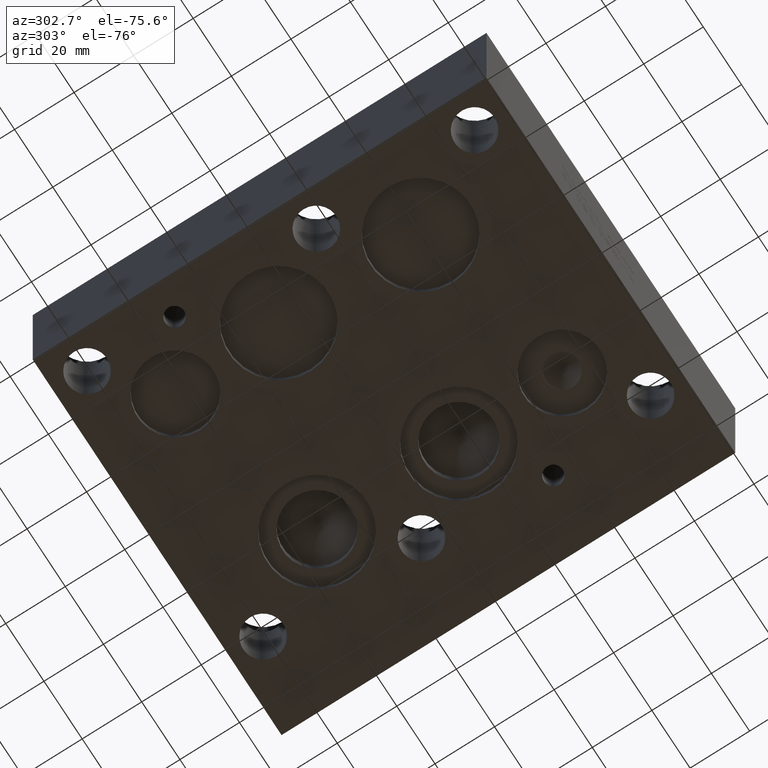
[diagram: clean part render]
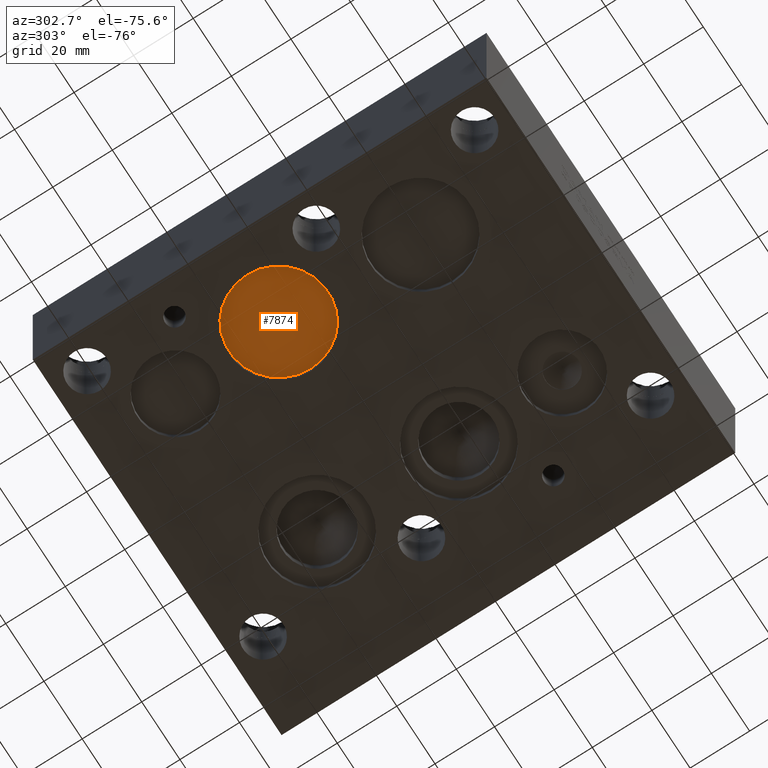
[diagram: same view with one face highlighted and labeled with its STEP entity id]
A machine part, auxiliary view. The second image highlights one B-rep face of the part: STEP entity #7874.
In plain terms, the highlighted planar face has unit normal (0, 0, -1).
Its self-contained STEP definition (entity closure, byte-faithful):
#75=CIRCLE('',#8217,16.6751);
#76=CIRCLE('',#8218,16.6751);
#932=FACE_OUTER_BOUND('',#1368,.T.);
#1368=EDGE_LOOP('',(#6552,#6553));
#3550=VERTEX_POINT('',#13106);
#3551=VERTEX_POINT('',#13108);
#4594=EDGE_CURVE('',#3551,#3550,#75,.T.);
#4595=EDGE_CURVE('',#3550,#3551,#76,.T.);
#6552=ORIENTED_EDGE('',*,*,#4594,.T.);
#6553=ORIENTED_EDGE('',*,*,#4595,.T.);
#7229=PLANE('',#8219);
#7874=ADVANCED_FACE('',(#932),#7229,.T.);
#8217=AXIS2_PLACEMENT_3D('',#13109,#9607,#9608);
#8218=AXIS2_PLACEMENT_3D('',#13110,#9609,#9610);
#8219=AXIS2_PLACEMENT_3D('',#13111,#9611,#9612);
#9607=DIRECTION('center_axis',(0.,0.,-1.));
#9608=DIRECTION('ref_axis',(1.,0.,0.));
#9609=DIRECTION('center_axis',(0.,0.,-1.));
#9610=DIRECTION('ref_axis',(1.,0.,0.));
#9611=DIRECTION('center_axis',(0.,0.,-1.));
#9612=DIRECTION('ref_axis',(1.,0.,0.));
#13106=CARTESIAN_POINT('',(11.8999,88.1126,2.794));
#13108=CARTESIAN_POINT('',(45.2501,88.1126,2.794));
#13109=CARTESIAN_POINT('Origin',(28.575,88.1126,2.794));
#13110=CARTESIAN_POINT('Origin',(28.575,88.1126,2.794));
#13111=CARTESIAN_POINT('Origin',(28.575,88.1126,2.794));